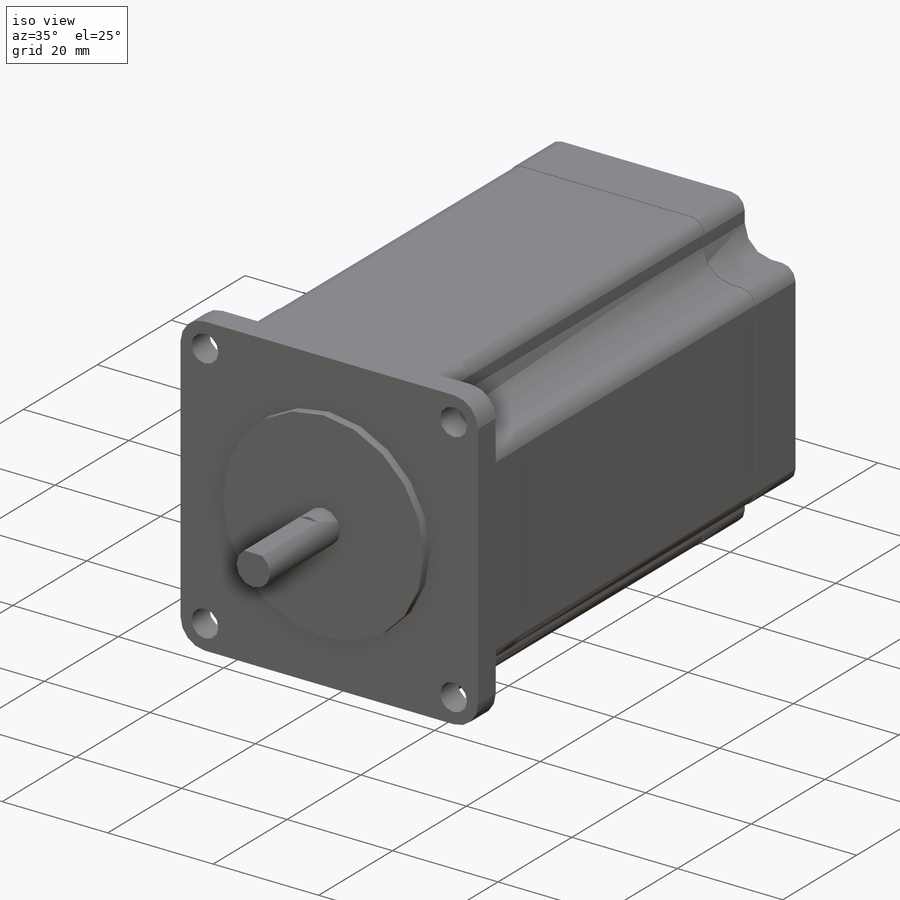
[diagram: iso view]
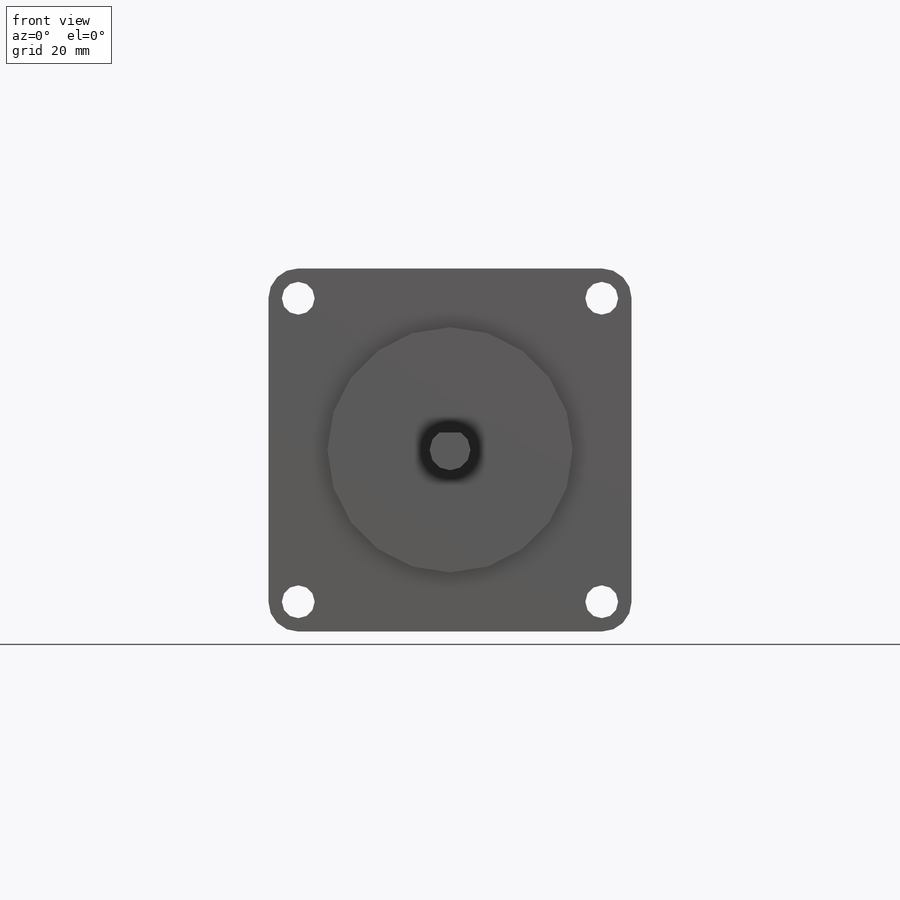
[diagram: front view]
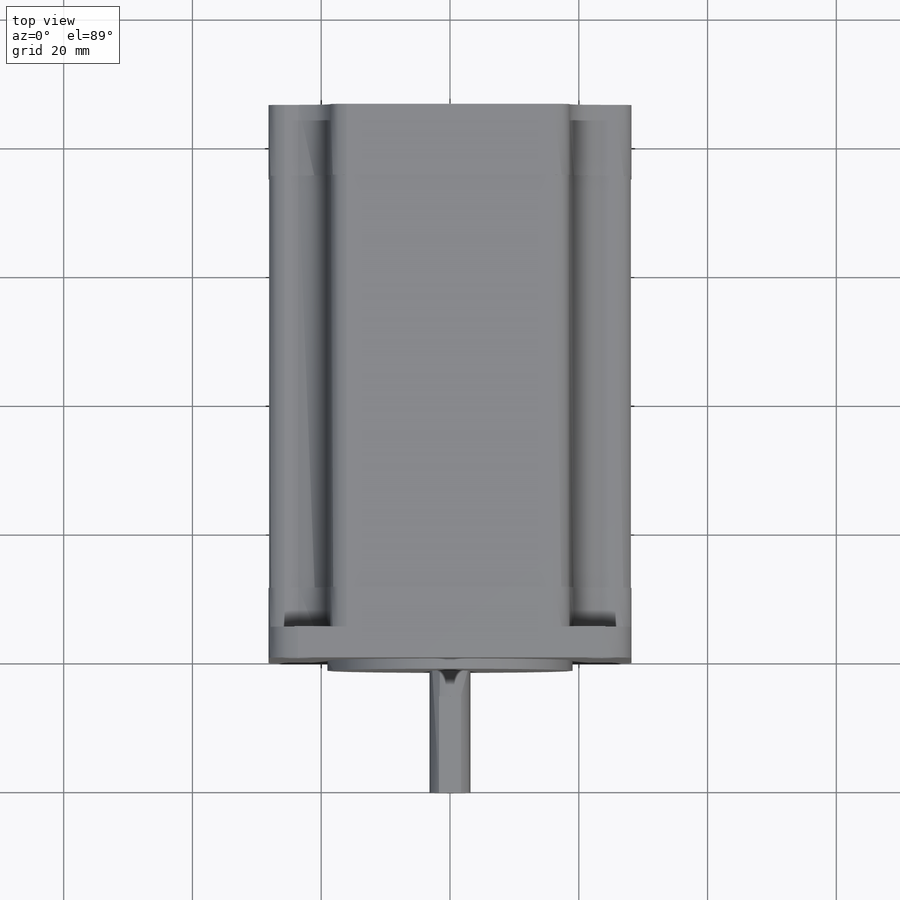
[diagram: top view]
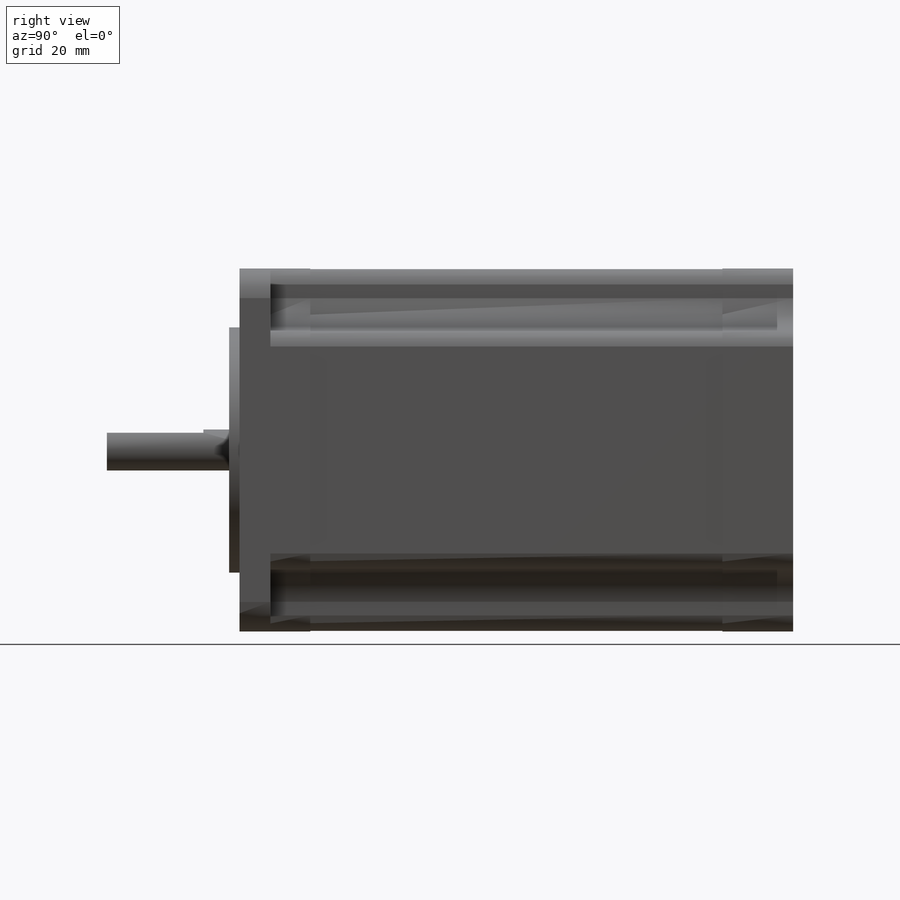
[diagram: right view]
SOLIDWORKS PART (.sldprt)
format: sldprt  version: not decoded by parser v0  size: 402,944 bytes
history: native  units: mm
features: sketch x7, extrude x4, cut_extrude x3, material x1, plane x1 (+13 scaffold rows collapsed)
feature tree (29):
  scaffold x13  (default folders/planes/origin — collapsed)
  material  "Plain Carbon Steel"
  sketch  "Sketch1"  dims[D1=6.35mm]
  extrude  "Boss-Extrude1"  Depth=20.6mm
  sketch  "Sketch2"  dims[D1=38.1mm]
  extrude  "Boss-Extrude2"  Depth=1.6mm
  sketch  "Sketch3"  dims[D2=4.6mm D1=56.4mm]
  extrude  "Boss-Extrude3"  Depth=4.8mm
  sketch  "Sketch4"  dims[c1.D2=~9.335026mm c1.4.6*2=10.0mm c1.D3=2.5mm c2.D2=5.0mm c2.D4=5.0mm c3.D2=5.0mm c3.D4=5.0mm c3.D1=47.14mm c4.D2=47.14mm c4.D1=~12.932901mm c5.D1=45.0deg c5.D2=47.14mm c5.D4=47.14mm c6.D2=47.14mm c6.D4=47.14mm]
  extrude  "Boss-Extrude4"  Depth=81.2mm
  sketch  "Sketch7"  dims[D1=5.85mm]
  cut_extrude  "Cut-Extrude5"  Depth=15mm
  sketch  "Sketch8"  dims[c1.D2=~5.834402mm c1.D3=5.1mm c1.D1=47.14mm c2.D2=47.14mm]
  cut_extrude  "Cut-Extrude6"  [1 undecoded]
  plane  "Plane1"  Offset=43mm
  sketch  "Sketch9"  dims[D1=0.1mm D2=0.0mm]
  cut_extrude  "Cut-Extrude7"  Depth=64mm
decode coverage: 13 of 14 modeling features carry decoded parameters
note: ~ marks probable driven/reference dimensions
note: 1 parameter value undecoded
note: suppression state not decoded; provenance and decode notes live in map.json
